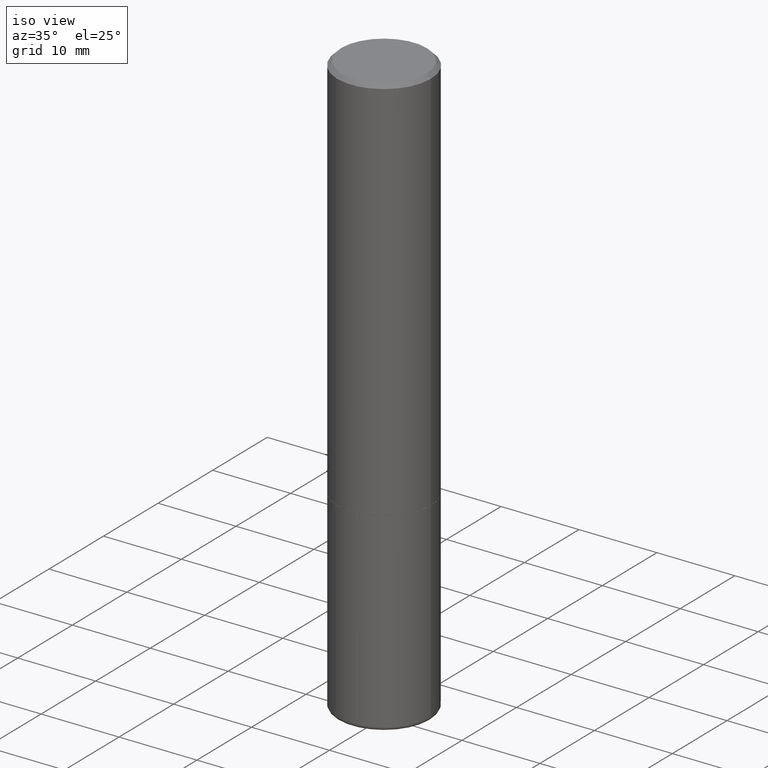
[diagram: clean part render]
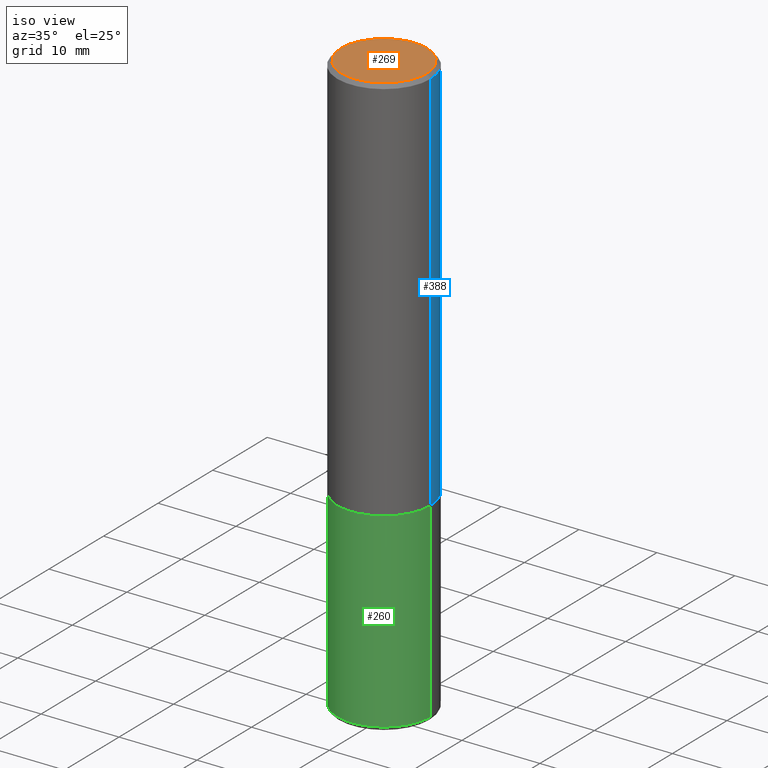
[diagram: same view with three faces highlighted in distinct colors, each labeled with its STEP entity id]
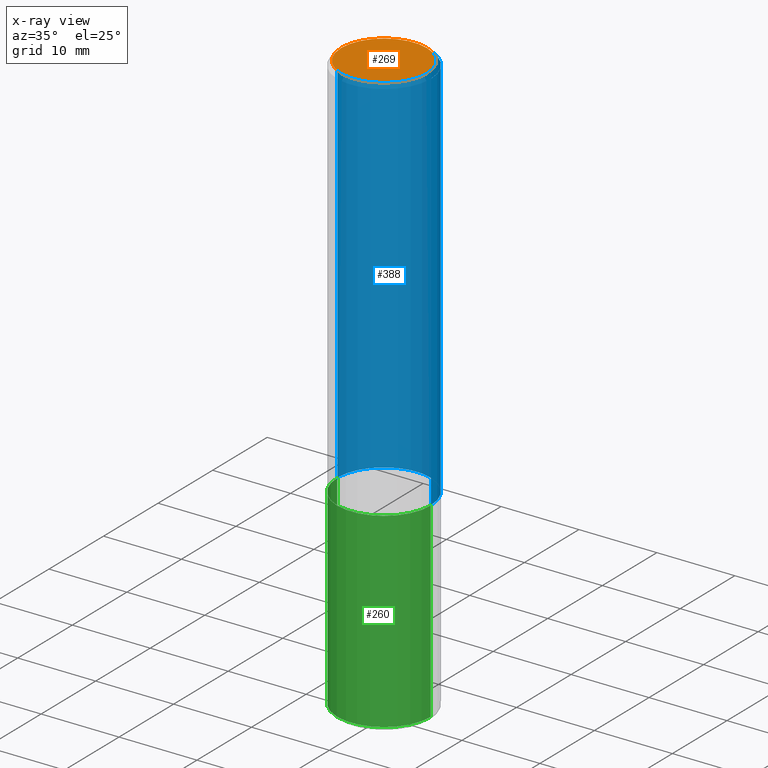
[diagram: x-ray of the same camera — body ghosted, the three highlighted faces saturated]
A machine part, iso view with three faces highlighted in distinct colors.
The next image is the same camera in x-ray (body ghosted, the three faces saturated) — at least one of them is partly hidden behind the body in this view.
Their STEP definitions:

[orange] entity #269 — the highlighted planar face has unit normal (0, -0, -1).
#8 = ORIENTED_EDGE ( 'NONE', *, *, #53, .T. ) ;
#13 = CARTESIAN_POINT ( 'NONE',  ( -0.2161999999999997535, 1.544631344304201775E-15, 2.390366994456123573E-16 ) ) ;
#22 = CARTESIAN_POINT ( 'NONE',  ( -5.845567920277230523E-45, 8.345921754130504540E-31, 2.390366994456230070E-16 ) ) ;
#26 = DIRECTION ( 'NONE',  ( 2.438088387897960049E-29, -3.491481338843145188E-15, -1.000000000000000000 ) ) ;
#41 = CARTESIAN_POINT ( 'NONE',  ( 0.2161999999999997535, -1.586759460484351002E-15, 2.390366994456338538E-16 ) ) ;
#53 = EDGE_CURVE ( 'NONE', #252, #154, #362, .T. ) ;
#58 = CARTESIAN_POINT ( 'NONE',  ( -5.845567920277230523E-45, 8.345921754130504540E-31, 2.390366994456230070E-16 ) ) ;
#64 = DIRECTION ( 'NONE',  ( 1.000000000000000000, -6.982962677686267499E-15, 4.881916136609867620E-29 ) ) ;
#77 = DIRECTION ( 'NONE',  ( -1.000000000000000000, 6.982962677686265922E-15, -4.876176775795935793E-29 ) ) ;
#87 = ORIENTED_EDGE ( 'NONE', *, *, #415, .T. ) ;
#90 = AXIS2_PLACEMENT_3D ( 'NONE', #276, #26, #77 ) ;
#92 = CIRCLE ( 'NONE', #319, 0.2161999999999997535 ) ;
#103 = EDGE_LOOP ( 'NONE', ( #8, #87 ) ) ;
#138 = PLANE ( 'NONE',  #90 ) ;
#151 = DIRECTION ( 'NONE',  ( -2.445468806185136597E-29, 3.491481338843145583E-15, 1.000000000000000000 ) ) ;
#154 = VERTEX_POINT ( 'NONE', #41 ) ;
#163 = FACE_OUTER_BOUND ( 'NONE', #103, .T. ) ;
#252 = VERTEX_POINT ( 'NONE', #13 ) ;
#269 = ADVANCED_FACE ( 'NONE', ( #163 ), #138, .F. ) ;
#276 = CARTESIAN_POINT ( 'NONE',  ( 1.509716530915769140E-15, 0.2161999999999997535, -6.353399157350757782E-16 ) ) ;
#319 = AXIS2_PLACEMENT_3D ( 'NONE', #58, #151, #64 ) ;
#324 = AXIS2_PLACEMENT_3D ( 'NONE', #22, #378, #375 ) ;
#362 = CIRCLE ( 'NONE', #324, 0.2161999999999997535 ) ;
#375 = DIRECTION ( 'NONE',  ( 1.000000000000000000, -6.982962677686267499E-15, 4.881916136609867620E-29 ) ) ;
#378 = DIRECTION ( 'NONE',  ( -2.445468806185136597E-29, 3.491481338843145583E-15, 1.000000000000000000 ) ) ;
#415 = EDGE_CURVE ( 'NONE', #154, #252, #92, .T. ) ;

[blue] entity #388 — the highlighted cylindrical surface (partial cylindrical patch) has radius 5.9995 mm, axis along (-0, 0, 1).
#11 = DIRECTION ( 'NONE',  ( -2.445468806185136877E-29, 3.491481338843145188E-15, 1.000000000000000000 ) ) ;
#17 = DIRECTION ( 'NONE',  ( -2.445468806185136877E-29, 3.491481338843145188E-15, 1.000000000000000000 ) ) ;
#44 = AXIS2_PLACEMENT_3D ( 'NONE', #218, #253, #45 ) ;
#45 = DIRECTION ( 'NONE',  ( 1.000000000000000000, -6.982962677686266711E-15, 0.000000000000000000 ) ) ;
#61 = EDGE_CURVE ( 'NONE', #297, #363, #96, .T. ) ;
#86 = CARTESIAN_POINT ( 'NONE',  ( 0.000000000000000000, 0.000000000000000000, 0.000000000000000000 ) ) ;
#89 = EDGE_CURVE ( 'NONE', #137, #387, #139, .T. ) ;
#96 = LINE ( 'NONE', #364, #155 ) ;
#107 = CARTESIAN_POINT ( 'NONE',  ( -0.2362000000000001321, 1.678301941865357577E-15, -1.161852468318209457E-29 ) ) ;
#109 = AXIS2_PLACEMENT_3D ( 'NONE', #86, #247, #206 ) ;
#116 = FACE_OUTER_BOUND ( 'NONE', #132, .T. ) ;
#119 = CARTESIAN_POINT ( 'NONE',  ( 4.811459876169255671E-29, -6.869489534173887122E-15, -1.967499999999999805 ) ) ;
#123 = CIRCLE ( 'NONE', #241, 0.2362000000000002431 ) ;
#132 = EDGE_LOOP ( 'NONE', ( #282, #389, #221, #414 ) ) ;
#137 = VERTEX_POINT ( 'NONE', #257 ) ;
#139 = LINE ( 'NONE', #107, #262 ) ;
#147 = DIRECTION ( 'NONE',  ( 1.000000000000000000, -6.982962677686265922E-15, 0.000000000000000000 ) ) ;
#155 = VECTOR ( 'NONE', #11, 39.37007874015748143 ) ;
#206 = DIRECTION ( 'NONE',  ( 1.000000000000000000, -6.982962677686266711E-15, 4.876176775795936353E-29 ) ) ;
#218 = CARTESIAN_POINT ( 'NONE',  ( 4.890937612370285420E-31, -6.982962677686308865E-17, -0.02000000000000005246 ) ) ;
#221 = ORIENTED_EDGE ( 'NONE', *, *, #245, .F. ) ;
#241 = AXIS2_PLACEMENT_3D ( 'NONE', #119, #305, #147 ) ;
#245 = EDGE_CURVE ( 'NONE', #363, #387, #317, .T. ) ;
#247 = DIRECTION ( 'NONE',  ( -2.445468806185136597E-29, 3.491481338843145583E-15, 1.000000000000000000 ) ) ;
#250 = CARTESIAN_POINT ( 'NONE',  ( 0.2362000000000002431, -8.518865318643385225E-15, -1.967499999999999805 ) ) ;
#253 = DIRECTION ( 'NONE',  ( -2.445468806185136597E-29, 3.491481338843145583E-15, 1.000000000000000000 ) ) ;
#257 = CARTESIAN_POINT ( 'NONE',  ( -0.2362000000000002431, -1.791357638610016055E-15, -1.967499999999999805 ) ) ;
#262 = VECTOR ( 'NONE', #17, 39.37007874015748143 ) ;
#277 = CYLINDRICAL_SURFACE ( 'NONE', #109, 0.2362000000000001321 ) ;
#282 = ORIENTED_EDGE ( 'NONE', *, *, #373, .T. ) ;
#297 = VERTEX_POINT ( 'NONE', #250 ) ;
#305 = DIRECTION ( 'NONE',  ( -2.445468806185136597E-29, 3.491481338843145583E-15, 1.000000000000000000 ) ) ;
#311 = CARTESIAN_POINT ( 'NONE',  ( 0.2361999999999999933, -1.690279253850498771E-15, -0.02000000000000005246 ) ) ;
#317 = CIRCLE ( 'NONE', #44, 0.2361999999999999933 ) ;
#363 = VERTEX_POINT ( 'NONE', #311 ) ;
#364 = CARTESIAN_POINT ( 'NONE',  ( 0.2362000000000001321, -1.649375784469497117E-15, 1.151752954443000789E-29 ) ) ;
#373 = EDGE_CURVE ( 'NONE', #297, #137, #123, .T. ) ;
#382 = CARTESIAN_POINT ( 'NONE',  ( -0.2361999999999999933, 1.579546157692633030E-15, -0.02000000000000005246 ) ) ;
#387 = VERTEX_POINT ( 'NONE', #382 ) ;
#388 = ADVANCED_FACE ( 'NONE', ( #116 ), #277, .T. ) ;
#389 = ORIENTED_EDGE ( 'NONE', *, *, #89, .T. ) ;
#414 = ORIENTED_EDGE ( 'NONE', *, *, #61, .F. ) ;

[green] entity #260 — the highlighted cylindrical surface (partial cylindrical patch) has radius 5.9995 mm, axis along (-0, 0, 1).
#1 = DIRECTION ( 'NONE',  ( -2.445468806185136877E-29, 3.491481338843145188E-15, 1.000000000000000000 ) ) ;
#4 = AXIS2_PLACEMENT_3D ( 'NONE', #392, #322, #166 ) ;
#57 = VERTEX_POINT ( 'NONE', #80 ) ;
#60 = VECTOR ( 'NONE', #412, 39.37007874015748143 ) ;
#66 = VERTEX_POINT ( 'NONE', #345 ) ;
#79 = EDGE_CURVE ( 'NONE', #357, #57, #225, .T. ) ;
#80 = CARTESIAN_POINT ( 'NONE',  ( -0.2361999999999999933, -6.878620523371424709E-15, -1.968499999999999694 ) ) ;
#85 = VECTOR ( 'NONE', #1, 39.37007874015748143 ) ;
#117 = VERTEX_POINT ( 'NONE', #293 ) ;
#124 = ORIENTED_EDGE ( 'NONE', *, *, #255, .T. ) ;
#127 = ORIENTED_EDGE ( 'NONE', *, *, #265, .F. ) ;
#130 = EDGE_CURVE ( 'NONE', #117, #66, #192, .T. ) ;
#144 = DIRECTION ( 'NONE',  ( 1.000000000000000000, -6.982962677686266711E-15, 4.876176775795936353E-29 ) ) ;
#159 = CARTESIAN_POINT ( 'NONE',  ( 4.813905344975440714E-29, -6.872981015512730918E-15, -1.968499999999999694 ) ) ;
#160 = CIRCLE ( 'NONE', #273, 0.2361999999999999933 ) ;
#166 = DIRECTION ( 'NONE',  ( 1.000000000000000000, -6.982962677686265922E-15, 0.000000000000000000 ) ) ;
#178 = CARTESIAN_POINT ( 'NONE',  ( -0.2361999999999999933, 1.678301941865356591E-15, -1.161852468318208757E-29 ) ) ;
#179 = FACE_OUTER_BOUND ( 'NONE', #383, .T. ) ;
#189 = ORIENTED_EDGE ( 'NONE', *, *, #79, .F. ) ;
#191 = CARTESIAN_POINT ( 'NONE',  ( 0.2361999999999999933, -1.649375784469496131E-15, 1.151752954443000088E-29 ) ) ;
#192 = LINE ( 'NONE', #191, #85 ) ;
#202 = DIRECTION ( 'NONE',  ( -2.445468806185136597E-29, 3.491481338843145583E-15, 1.000000000000000000 ) ) ;
#222 = AXIS2_PLACEMENT_3D ( 'NONE', #256, #202, #144 ) ;
#225 = LINE ( 'NONE', #178, #60 ) ;
#230 = CYLINDRICAL_SURFACE ( 'NONE', #222, 0.2361999999999999933 ) ;
#255 = EDGE_CURVE ( 'NONE', #357, #117, #336, .T. ) ;
#256 = CARTESIAN_POINT ( 'NONE',  ( 0.000000000000000000, 0.000000000000000000, 0.000000000000000000 ) ) ;
#260 = ADVANCED_FACE ( 'NONE', ( #179 ), #230, .T. ) ;
#265 = EDGE_CURVE ( 'NONE', #57, #66, #160, .T. ) ;
#273 = AXIS2_PLACEMENT_3D ( 'NONE', #159, #290, #291 ) ;
#287 = ORIENTED_EDGE ( 'NONE', *, *, #130, .T. ) ;
#290 = DIRECTION ( 'NONE',  ( -2.445468806185136597E-29, 3.491481338843145583E-15, 1.000000000000000000 ) ) ;
#291 = DIRECTION ( 'NONE',  ( 1.000000000000000000, -6.982962677686265133E-15, 0.000000000000000000 ) ) ;
#293 = CARTESIAN_POINT ( 'NONE',  ( 0.2362000000000000766, -1.189023969943033018E-14, -2.933100000000000485 ) ) ;
#322 = DIRECTION ( 'NONE',  ( -2.445468806185136597E-29, 3.491481338843145583E-15, 1.000000000000000000 ) ) ;
#336 = CIRCLE ( 'NONE', #4, 0.2361999999999999655 ) ;
#342 = CARTESIAN_POINT ( 'NONE',  ( -0.2362000000000000766, -8.562561973095475682E-15, -2.933100000000000485 ) ) ;
#345 = CARTESIAN_POINT ( 'NONE',  ( 0.2361999999999999933, -8.522356799982226655E-15, -1.968499999999999694 ) ) ;
#357 = VERTEX_POINT ( 'NONE', #342 ) ;
#383 = EDGE_LOOP ( 'NONE', ( #189, #124, #287, #127 ) ) ;
#392 = CARTESIAN_POINT ( 'NONE',  ( 7.172804555421625687E-29, -1.024086391496083208E-14, -2.933100000000000485 ) ) ;
#412 = DIRECTION ( 'NONE',  ( -2.445468806185136877E-29, 3.491481338843145188E-15, 1.000000000000000000 ) ) ;